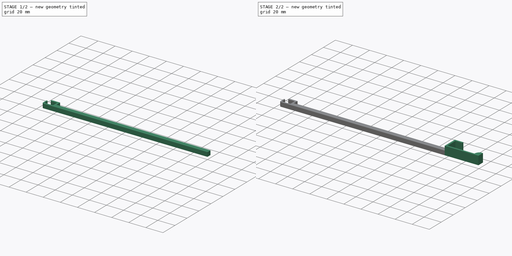
[diagram: build sequence overview — one tinted view per stage of 2, left to right]
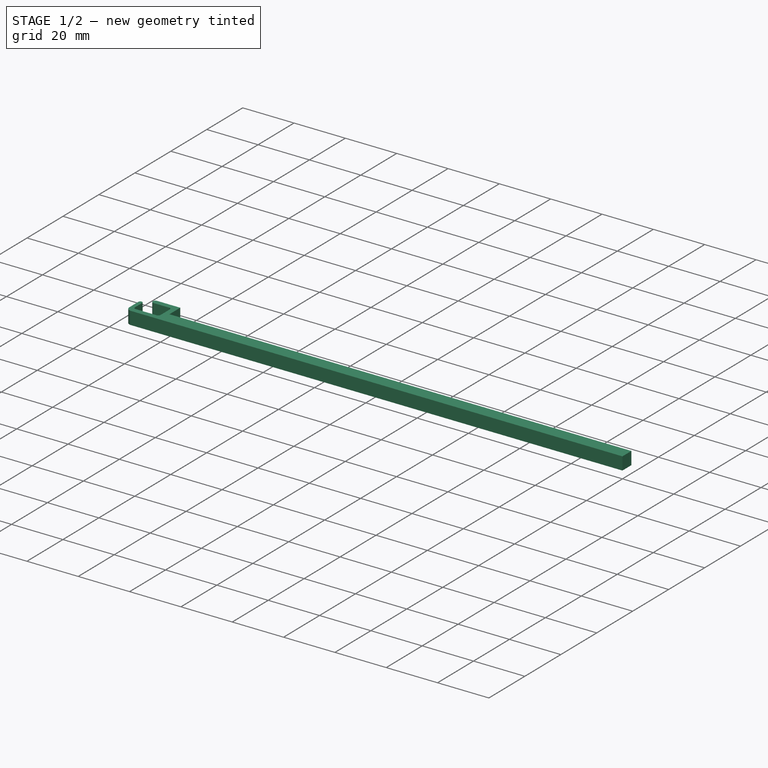
[diagram: stage 1 of 2 — iso view after this stage's code; geometry added in this stage tinted green]
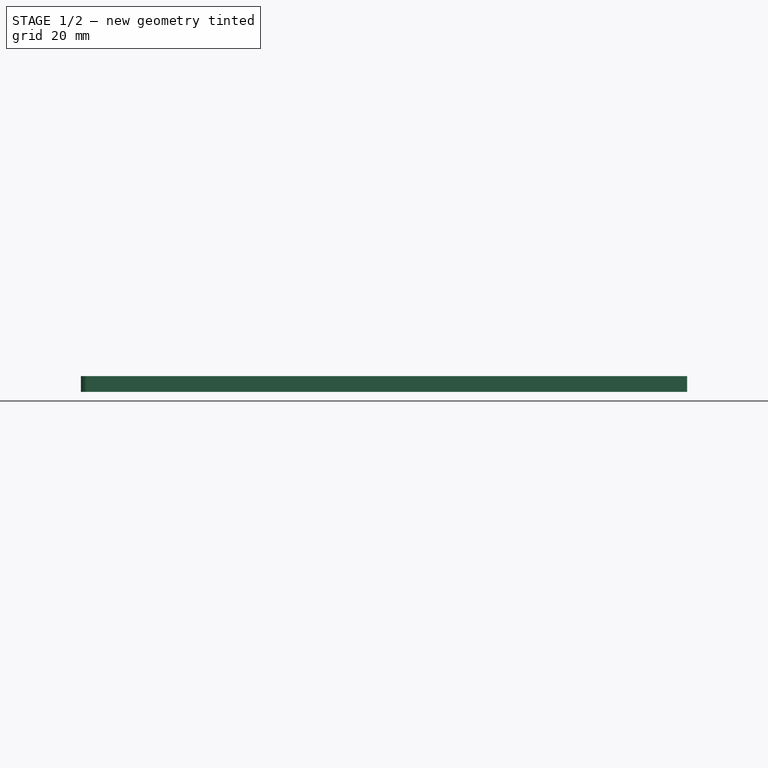
[diagram: stage 1 of 2 — front view after this stage's code; geometry added in this stage tinted green]
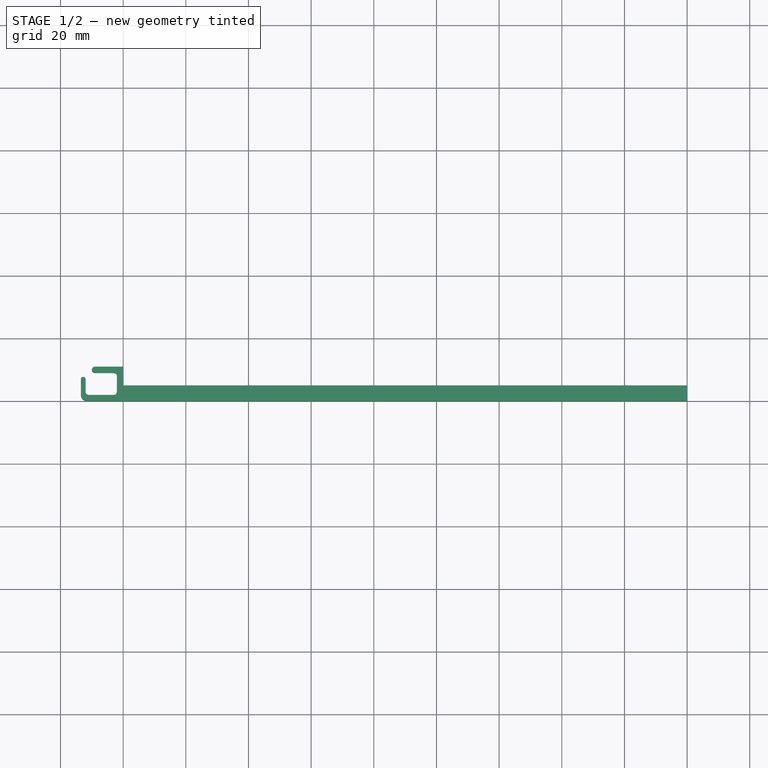
[diagram: stage 1 of 2 — top view after this stage's code; geometry added in this stage tinted green]
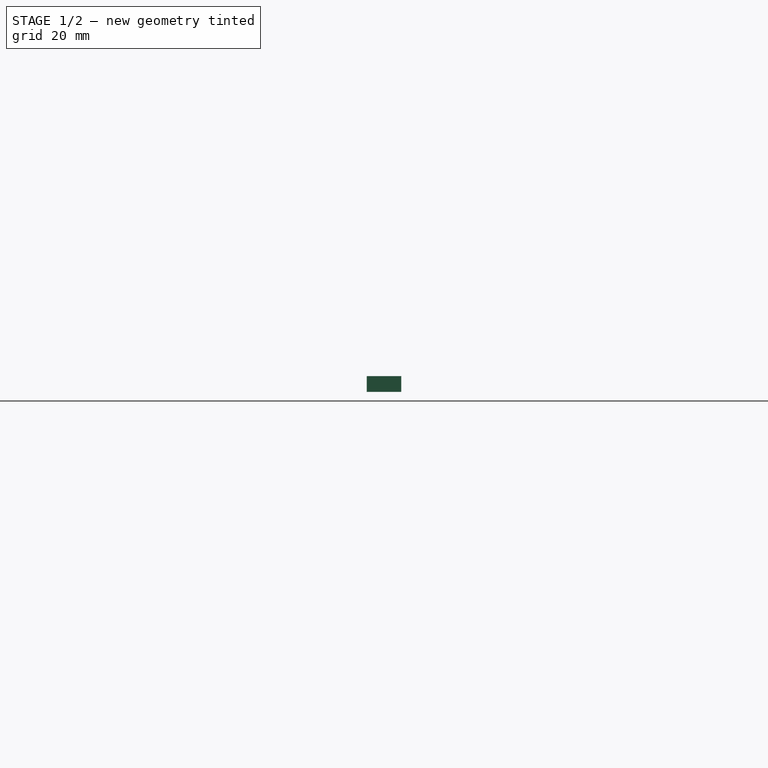
[diagram: stage 1 of 2 — right view after this stage's code; geometry added in this stage tinted green]
FCSTD DOCUMENT  (FreeCAD 0.21R33771 (Git))
Label: solarWindowMoverSupport
License: All rights reserved
LicenseURL: http://en.wikipedia.org/wiki/All_rights_reserved
objects: Sketcher::SketchObject×3, PartDesign::Pad×3, Spreadsheet::Sheet×1, PartDesign::Body×1
note: 10 computed .brp shape members not serialized (recipe doc carries the construction recipe); baked Part::Feature solids carry a one-line shape summary decoded from their .brp

FEATURE [Sketcher::SketchObject] Sketch
  FullyConstrained = true
  MapMode = 5
  Support = -> [XY_Plane]
  expr: Constraints[10] = Spreadsheet.smallConnHeight
  expr: Constraints[18] = Spreadsheet.smallConnHeight - Spreadsheet.smallConnOpen
  expr: Constraints[19] = Spreadsheet.thickness
  expr: Constraints[26] = Spreadsheet.thickness - 0.5
  expr: Constraints[27] = Spreadsheet.smallConnWidth
  expr: Constraints[28] = Spreadsheet.thickness
  expr: Constraints[29] = Spreadsheet.thickness
  expr: Constraints[8] = Spreadsheet.smallConnWidth
  expr: Constraints[9] = Spreadsheet.thickness
  sketch-geometry (21):
    g0: LineSegment StartX=0 StartY=0 StartZ=0 EndX=-11.5 EndY=0 EndZ=0
    g1: LineSegment StartX=-12 StartY=2 StartZ=0 EndX=-2 EndY=2 EndZ=0
    g2: LineSegment StartX=-2 StartY=2 StartZ=0 EndX=-2 EndY=9 EndZ=0
    g3: LineSegment StartX=-9 StartY=11 StartZ=0 EndX=0 EndY=11 EndZ=0
    g4: LineSegment StartX=0 StartY=11 StartZ=0 EndX=0 EndY=0 EndZ=0
    g5: LineSegment StartX=-12 StartY=7 StartZ=0 EndX=-12 EndY=2 EndZ=0
    g6: LineSegment StartX=-13.5 StartY=2 StartZ=0 EndX=-13.5 EndY=7 EndZ=0
    g7: LineSegment StartX=-9 StartY=11 StartZ=0 EndX=-9 EndY=9 EndZ=0
    g8: LineSegment StartX=-9 StartY=9 StartZ=0 EndX=-2 EndY=9 EndZ=0
    g9: ArcOfCircle CenterX=-12.75 CenterY=7 CenterZ=0 NormalX=0 NormalY=0 NormalZ=1 AngleXU=0 Radius=0.75 StartAngle=6e-16 EndAngle=3.14159
    g10: ArcOfCircle CenterX=-11.5 CenterY=2 CenterZ=0 NormalX=0 NormalY=0 NormalZ=1 AngleXU=0 Radius=2 StartAngle=3.14159 EndAngle=4.71239
    g11: LineSegment StartX=-12 StartY=7 StartZ=0 EndX=-12 EndY=3 EndZ=0
    g12: LineSegment StartX=-11 StartY=2 StartZ=0 EndX=-3 EndY=2 EndZ=0
    g13: LineSegment StartX=-9 StartY=9 StartZ=0 EndX=-3 EndY=9 EndZ=0
    g14: LineSegment StartX=-2 StartY=8 StartZ=0 EndX=-2 EndY=3 EndZ=0
    g15: ArcOfCircle CenterX=-11 CenterY=3 CenterZ=0 NormalX=0 NormalY=0 NormalZ=1 AngleXU=0 Radius=1 StartAngle=3.14159 EndAngle=4.71239
    g16: ArcOfCircle CenterX=-3 CenterY=3 CenterZ=0 NormalX=0 NormalY=0 NormalZ=1 AngleXU=0 Radius=1 StartAngle=4.71239 EndAngle=6.28319
    g17: ArcOfCircle CenterX=-3 CenterY=8 CenterZ=0 NormalX=0 NormalY=0 NormalZ=1 AngleXU=0 Radius=1 StartAngle=0 EndAngle=1.5708
    g18: LineSegment StartX=-3 StartY=9 StartZ=0 EndX=-9 EndY=9 EndZ=0
    g19: LineSegment StartX=0 StartY=11 StartZ=0 EndX=-9 EndY=11 EndZ=0
    g20: ArcOfCircle CenterX=-9 CenterY=10 CenterZ=0 NormalX=0 NormalY=0 NormalZ=1 AngleXU=0 Radius=1 StartAngle=1.5708 EndAngle=4.71239
  constraints (55):
    c: Coincident(g0,g-1)
    c: Horizontal(g1)
    c: Coincident(g2,g1)
    c: Vertical(g2)
    c: PointOnObject(g3,g-2)
    c: Horizontal(g3)
    c: Coincident(g4,g3)
    c: Coincident(g4,g0)
    c: DistanceY(g2,g2) = 7
    c: DistanceX(g1,g0) = 2
    c: DistanceX(g1,g1) = 10
    c: Coincident(g5,g1)
    c: Vertical(g6)
    c: Coincident(g7,g3)
    c: Vertical(g7)
    c: Coincident(g8,g7)
    c: Coincident(g8,g2)
    c: Horizontal(g8)
    c: DistanceX(g8,g8) = 7
    c: DistanceY(g7,g7) = 2
    c: Tangent(g9,g6) = 1.5708
    c: Tangent(g9,g5) = 1.5708
    c: Vertical(g5)
    c: Tangent(g10,g0) = 1.5708
    c: Tangent(g10,g6) = 1.5708
    c: Horizontal(g0)
    c: DistanceX(g6,g1) = 1.5
    c: DistanceY(g0,g9) = 7
    c: Radius(g10) = 2
    c: DistanceY(g0,g1) = 2
    c: Coincident(g11,g9)
    c: PointOnObject(g12,g1)
    c: Coincident(g13,g7)
    c: PointOnObject(g13,g8)
    c: PointOnObject(g14,g2)
    c: PointOnObject(g14,g2)
    c: Tangent(g11,g15) = -1.5708
    c: Horizontal(g12)
    c: Vertical(g11)
    c: Coincident(g15,g11)
    c: Tangent(g15,g12) = -1.5708
    c: Radius(g15) = 1
    c: Tangent(g12,g16) = -1.5708
    c: Tangent(g14,g16) = 1.5708
    c: Equal(g15,g16)
    c: Tangent(g13,g17) = 1.5708
    c: Tangent(g14,g17) = 1.5708
    c: Equal(g15,g17)
    c: Coincident(g18,g17)
    c: Coincident(g19,g4)
    c: PointOnObject(g20,g7)
    c: Coincident(g20,g7)
    c: Coincident(g20,g3)
    c: Coincident(g19,g20)
    c: Coincident(g18,g20)
FEATURE [Spreadsheet::Sheet] Spreadsheet
  cells = A2='thickness; B2(thickness)=2; A3='smallConnWidth; B3(smallConnWidth)=7; A4='smallConnHeight; B4(smallConnHeight)=10; A5='smallConnOpen; B5(smallConnOpen)=3; A7='longEndR; B7(longEndR)=6; A8='longendL; B8(longendL)=31.5; A10='sepLen; B10(sepLen)=180
FEATURE [Sketcher::SketchObject] Sketch001
  AttachmentOffset = pos=(180,0,0) rot=(0,1,0;3.14159rad)
  FullyConstrained = true
  MapMode = 5
  Placement = pos=(180,0,0) rot=(0,1,0;3.14159rad)
  Support = -> [XY_Plane]
  expr: .AttachmentOffset.Base.x = Spreadsheet.sepLen
  expr: Constraints[17] = Spreadsheet.thickness
  expr: Constraints[18] = Spreadsheet.thickness
  expr: Constraints[21] = Spreadsheet.longEndR
  expr: Constraints[25] = Spreadsheet.thickness
  expr: Constraints[26] = Spreadsheet.longendL
  sketch-geometry (11):
    g0: LineSegment StartX=0 StartY=0 StartZ=0 EndX=-39.4992 EndY=0 EndZ=0
    g1: LineSegment StartX=-39.4992 StartY=0 StartZ=0 EndX=-39.4992 EndY=2.1 EndZ=0
    g2: LineSegment StartX=-33.5 StartY=2 StartZ=0 EndX=-2 EndY=2 EndZ=0
    g3: LineSegment StartX=-2 StartY=2 StartZ=0 EndX=-2 EndY=15 EndZ=0
    g4: LineSegment StartX=-2 StartY=15 StartZ=0 EndX=-10 EndY=15 EndZ=0
    g5: LineSegment StartX=-10 StartY=15 StartZ=0 EndX=-10 EndY=17 EndZ=0
    g6: LineSegment StartX=-10 StartY=17 StartZ=0 EndX=0 EndY=17 EndZ=0
    g7: LineSegment StartX=0 StartY=17 StartZ=0 EndX=0 EndY=0 EndZ=0
    g8: ArcOfCircle CenterX=-39.4992 CenterY=2.1 CenterZ=0 NormalX=0 NormalY=0 NormalZ=1 AngleXU=0 Radius=6 StartAngle=6.26652 EndAngle=7.44284
    g9: LineSegment StartX=-39.4992 StartY=2.1 StartZ=0 EndX=-39.4992 EndY=7.6 EndZ=0
    g10: LineSegment StartX=-39.4992 StartY=7.6 StartZ=0 EndX=-37.1013 EndY=7.6 EndZ=0
  constraints (32):
    c: Coincident(g0,g-1)
    c: PointOnObject(g0,g-1)
    c: Coincident(g1,g0)
    c: Vertical(g1)
    c: Horizontal(g2)
    c: Coincident(g3,g2)
    c: Vertical(g3)
    c: Coincident(g4,g3)
    c: Horizontal(g4)
    c: Coincident(g5,g4)
    c: Coincident(g6,g5)
    c: PointOnObject(g6,g-2)
    c: Horizontal(g6)
    c: Coincident(g7,g6)
    c: Coincident(g7,g0)
    c: Vertical(g5)
    c: DistanceY(g3,g3) = 13
    c: DistanceY(g5,g5) = 2
    c: DistanceX(g2,g0) = 2
    c: DistanceX(g4,g4) = 8
    c: Coincident(g8,g1)
    c: Radius(g8) = 6
    c: Coincident(g9,g1)
    c: Vertical(g9)
    c: Coincident(g8,g2)
    c: DistanceY(g0,g2) = 2
    c: DistanceX(g2,g2) = 31.5
    c: DistanceY(g1,g1) = 2.1
    c: Horizontal(g10)
    c: Coincident(g8,g10)
    c: Coincident(g9,g10)
    c: DistanceY(g9,g9) = 5.5
FEATURE [PartDesign::Pad] Pad
  Direction = (0,0,1)
  Length = 5
  Length2 = 10
  Profile = -> Sketch
  ReferenceAxis = -> Sketch [N_Axis]
  Type = 0
FEATURE [Sketcher::SketchObject] Sketch002
  FullyConstrained = true
  MapMode = 5
  Support = -> [XY_Plane]
  expr: Constraints[10] = Spreadsheet.sepLen
  sketch-geometry (4):
    g0: LineSegment StartX=0 StartY=5 StartZ=0 EndX=180 EndY=5 EndZ=0
    g1: LineSegment StartX=180 StartY=5 StartZ=0 EndX=180 EndY=0 EndZ=0
    g2: LineSegment StartX=180 StartY=0 StartZ=0 EndX=0 EndY=0 EndZ=0
    g3: LineSegment StartX=0 StartY=0 StartZ=0 EndX=0 EndY=5 EndZ=0
  constraints (12):
    c: Coincident(g0,g1)
    c: Coincident(g1,g2)
    c: Coincident(g2,g3)
    c: Coincident(g3,g0)
    c: Horizontal(g0)
    c: Horizontal(g2)
    c: Vertical(g1)
    c: Vertical(g3)
    c: PointOnObject(g0,g-2)
    c: PointOnObject(g1,g-1)
    c: DistanceX(g0,g0) = 180
    c: DistanceY(g1,g1) = 5
FEATURE [PartDesign::Pad] Pad002
  BaseFeature = -> Pad
  Direction = (0,0,1)
  Length = 5
  Length2 = 10
  Profile = -> Sketch002
  ReferenceAxis = -> Sketch002 [N_Axis]
  Type = 0
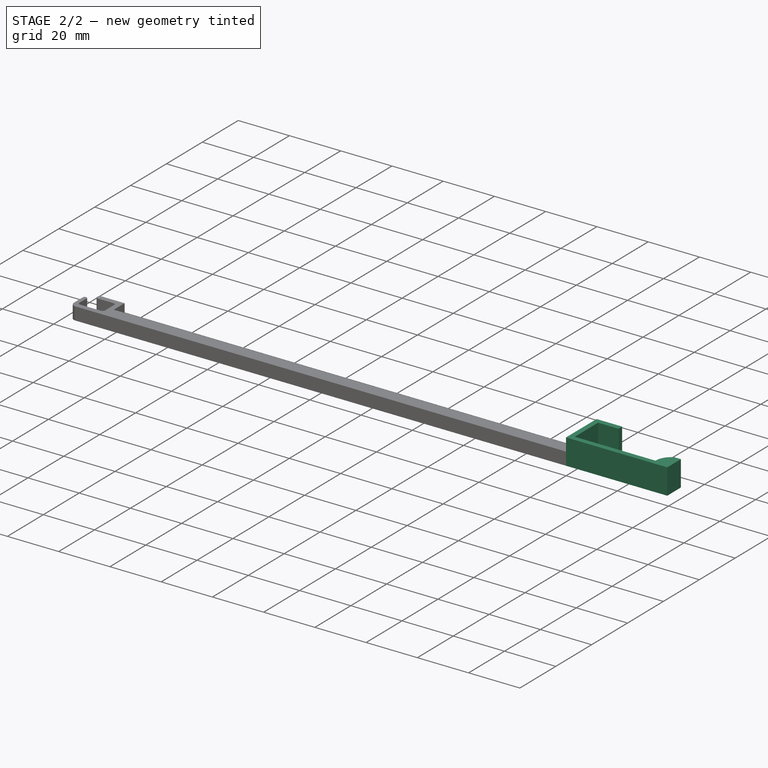
[diagram: stage 2 of 2 — iso view after this stage's code; geometry added in this stage tinted green]
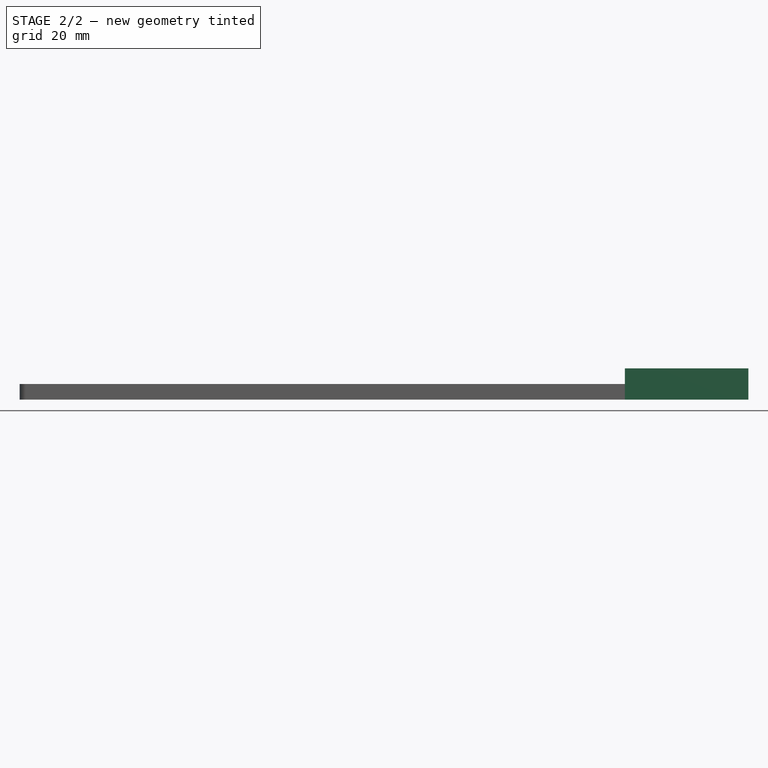
[diagram: stage 2 of 2 — front view after this stage's code; geometry added in this stage tinted green]
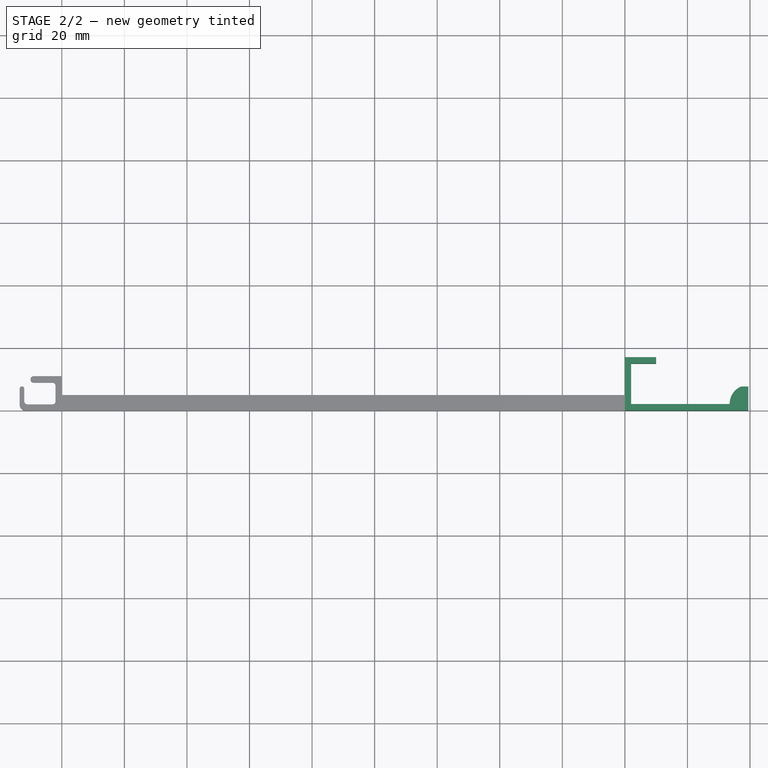
[diagram: stage 2 of 2 — top view after this stage's code; geometry added in this stage tinted green]
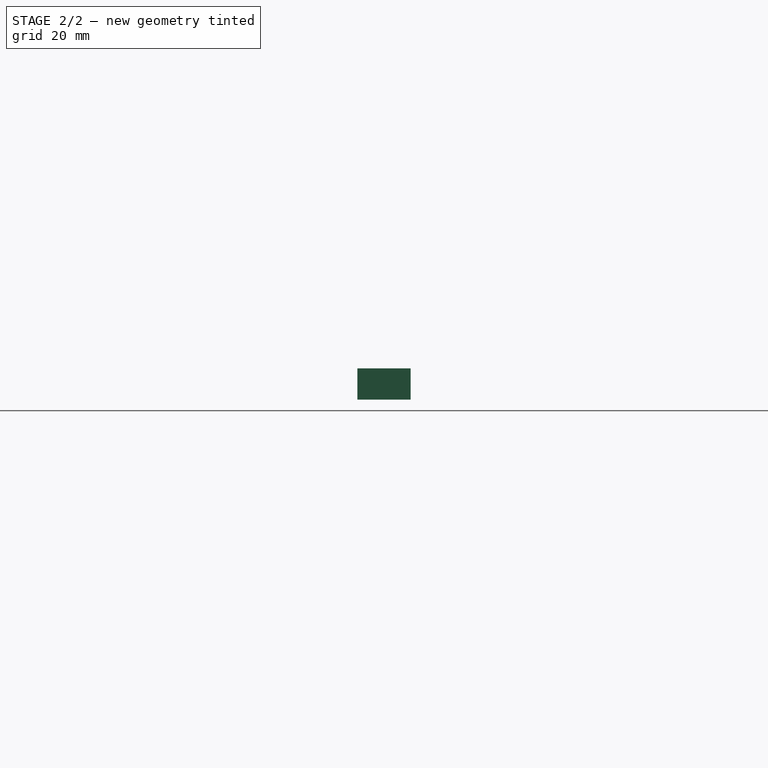
[diagram: stage 2 of 2 — right view after this stage's code; geometry added in this stage tinted green]
FEATURE [PartDesign::Pad] Pad003
  BaseFeature = -> Pad002
  Direction = (1e-16,0,-1)
  Length = 10
  Length2 = 10
  Profile = -> Sketch001
  ReferenceAxis = -> Sketch001 [N_Axis]
  Reversed = true
  Type = 0
FEATURE [PartDesign::Body] Body
  Group = -> [Sketch,Sketch001,Pad,Sketch002,Pad002,Pad003]
  Origin = -> Origin
  Tip = -> Pad003
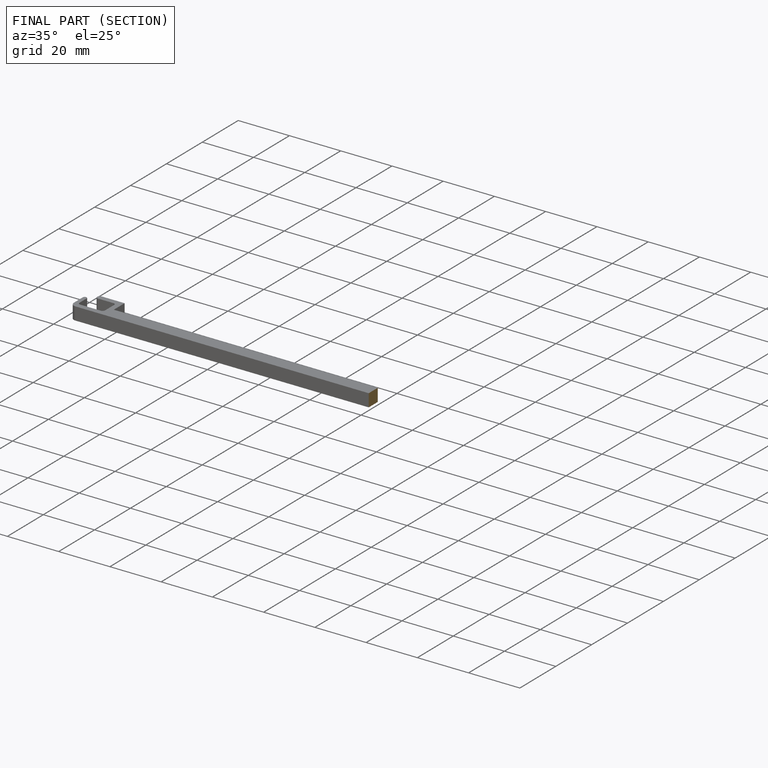
[diagram: finished part — half-section view (interior)]
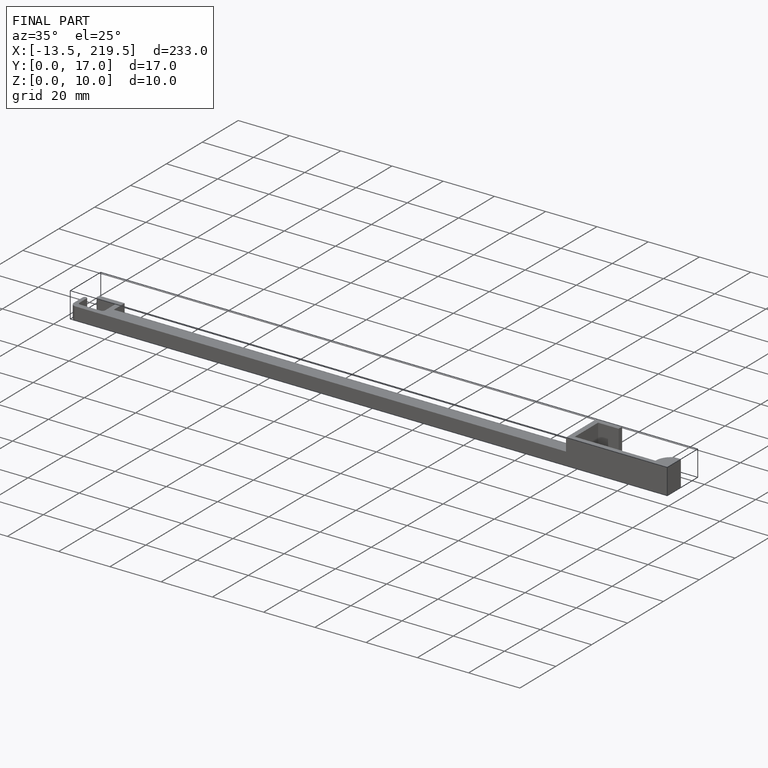
[diagram: finished part — iso view with bounding-box wireframe]
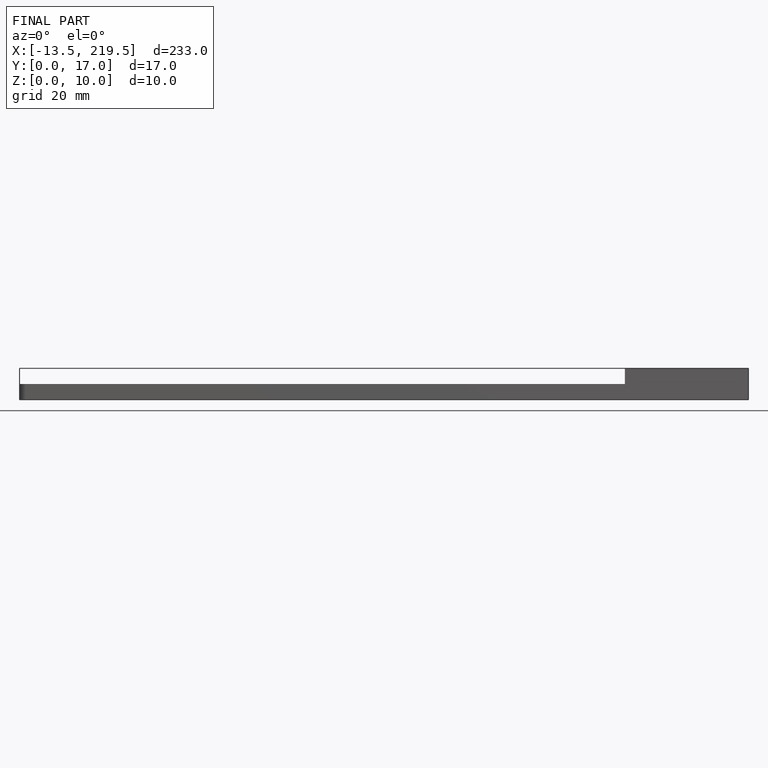
[diagram: finished part — front view with bounding-box wireframe]
